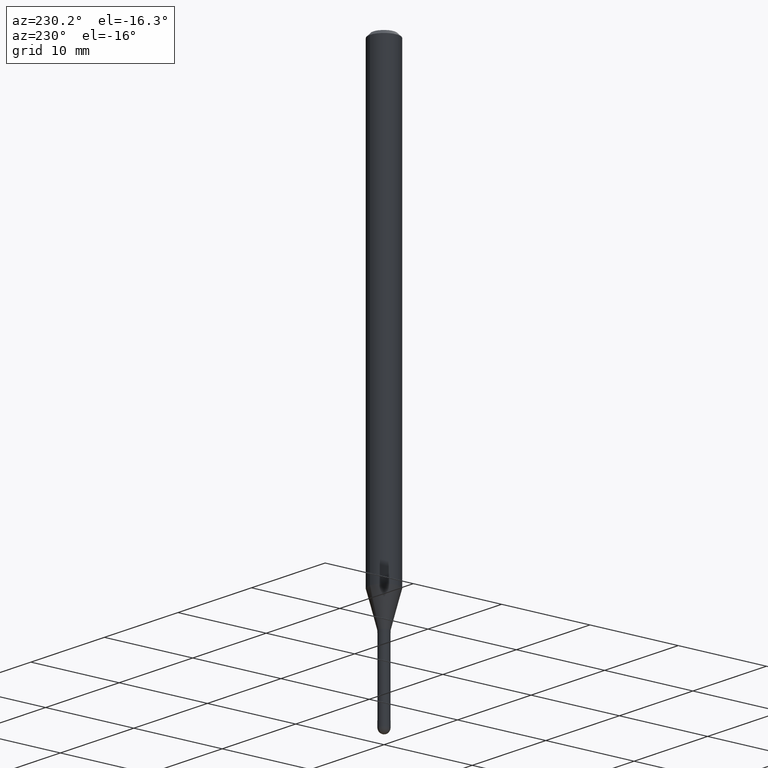
[diagram: clean part render]
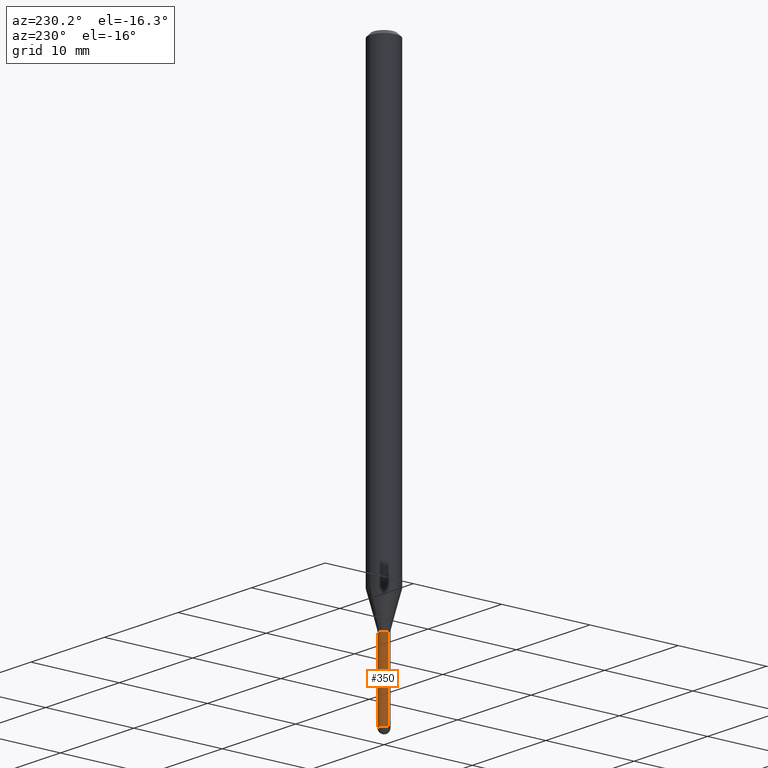
[diagram: same view with one face highlighted and labeled with its STEP entity id]
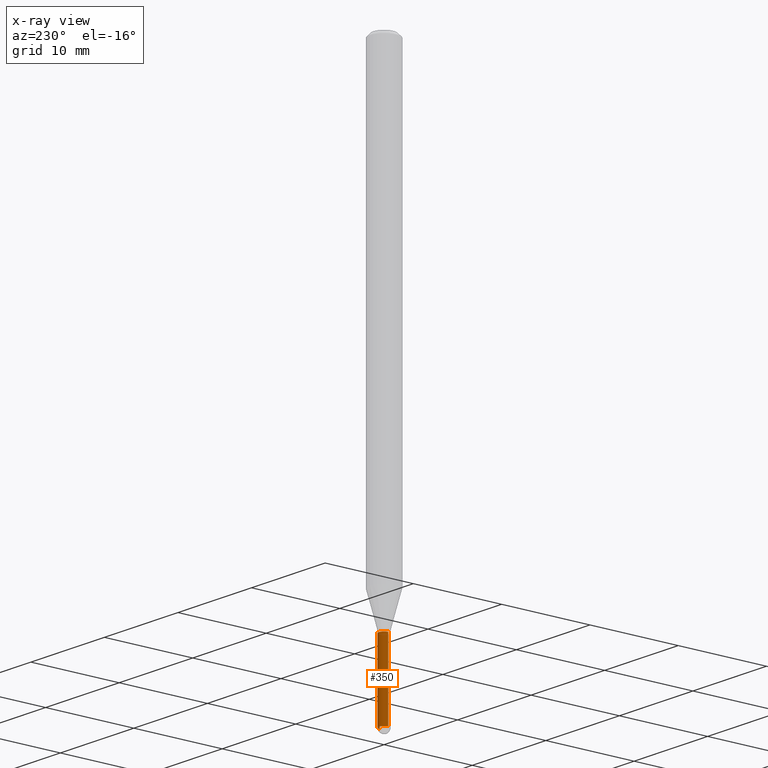
[diagram: x-ray of the same camera — body ghosted, the highlighted face saturated]
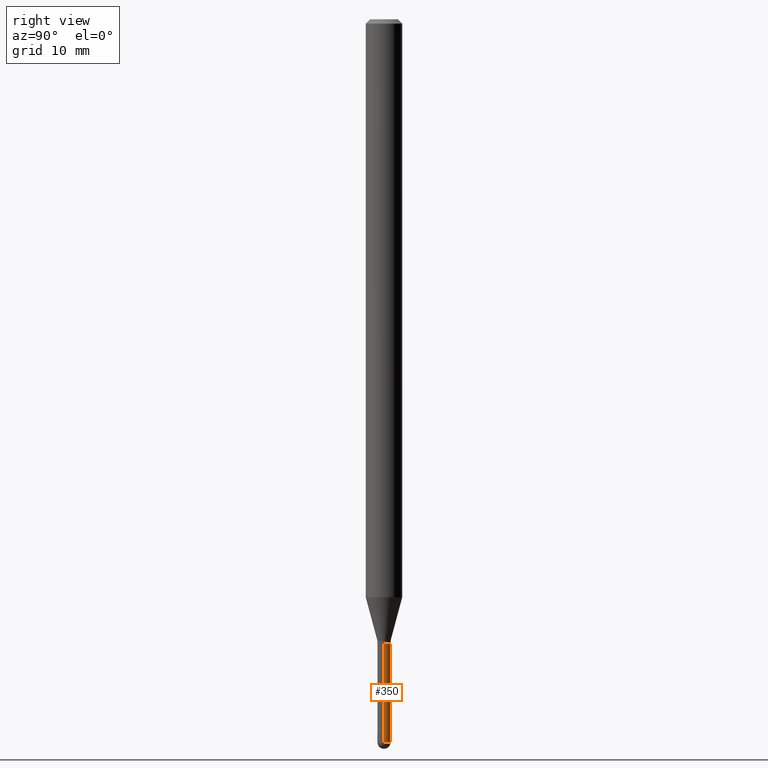
[diagram: same view with one face highlighted and labeled with its STEP entity id]
A machine part, auxiliary view. The second image highlights one B-rep face of the part: STEP entity #350.
The next image is the same camera in x-ray: the body ghosted, the highlighted face saturated — about 0% of this face is hidden behind the body in this view.
A second angle (right view) of the same face is appended — the face is thin or edge-on in the first view.
In plain terms, the highlighted cylindrical surface (edge-blend (fillet) strip) has radius 0.5715 mm, axis along (-0, 0, 1).
Its self-contained STEP definition (entity closure, byte-faithful):
#7 = AXIS2_PLACEMENT_3D ( 'NONE', #12, #18, #60 ) ;
#12 = CARTESIAN_POINT ( 'NONE',  ( 0.000000000000000000, 0.000000000000000000, 0.000000000000000000 ) ) ;
#15 = CIRCLE ( 'NONE', #160, 0.02249999999999999570 ) ;
#18 = DIRECTION ( 'NONE',  ( -2.445468806185136597E-29, 3.491481338843145583E-15, 1.000000000000000000 ) ) ;
#60 = DIRECTION ( 'NONE',  ( 1.000000000000000000, -6.982962677686266711E-15, 4.876176775795935793E-29 ) ) ;
#61 = AXIS2_PLACEMENT_3D ( 'NONE', #276, #77, #165 ) ;
#63 = EDGE_CURVE ( 'NONE', #501, #188, #496, .T. ) ;
#77 = DIRECTION ( 'NONE',  ( -2.445468806185136597E-29, 3.491481338843145583E-15, 1.000000000000000000 ) ) ;
#105 = EDGE_CURVE ( 'NONE', #466, #303, #119, .T. ) ;
#106 = ORIENTED_EDGE ( 'NONE', *, *, #105, .T. ) ;
#113 = LINE ( 'NONE', #399, #429 ) ;
#117 = CARTESIAN_POINT ( 'NONE',  ( 0.02249999999999999917, -7.628886725372273518E-15, -2.140000000000000124 ) ) ;
#119 = CIRCLE ( 'NONE', #510, 0.02249999999999999570 ) ;
#160 = AXIS2_PLACEMENT_3D ( 'NONE', #392, #357, #503 ) ;
#165 = DIRECTION ( 'NONE',  ( 1.000000000000000000, -6.982962677686269077E-15, 0.000000000000000000 ) ) ;
#188 = VERTEX_POINT ( 'NONE', #446 ) ;
#203 = DIRECTION ( 'NONE',  ( -2.445468806185136877E-29, 3.491481338843145188E-15, 1.000000000000000000 ) ) ;
#217 = DIRECTION ( 'NONE',  ( -2.445468806185136877E-29, 3.491481338843145188E-15, 1.000000000000000000 ) ) ;
#223 = EDGE_LOOP ( 'NONE', ( #339, #380, #449, #297, #106 ) ) ;
#226 = VERTEX_POINT ( 'NONE', #312 ) ;
#276 = CARTESIAN_POINT ( 'NONE',  ( 5.233303245236192586E-29, -7.471770065124331886E-15, -2.140000000000000124 ) ) ;
#285 = CARTESIAN_POINT ( 'NONE',  ( 1.571166602480017334E-16, 0.02249999999999136718, -2.477500000000000036 ) ) ;
#297 = ORIENTED_EDGE ( 'NONE', *, *, #417, .F. ) ;
#303 = VERTEX_POINT ( 'NONE', #285 ) ;
#312 = CARTESIAN_POINT ( 'NONE',  ( -0.02249999999999999570, -7.901085425508090322E-15, -2.477500000000000036 ) ) ;
#339 = ORIENTED_EDGE ( 'NONE', *, *, #493, .T. ) ;
#346 = EDGE_CURVE ( 'NONE', #226, #188, #378, .T. ) ;
#350 = ADVANCED_FACE ( 'NONE', ( #375 ), #418, .T. ) ;
#357 = DIRECTION ( 'NONE',  ( -2.445468806185136597E-29, 3.491481338843145583E-15, 1.000000000000000000 ) ) ;
#358 = CARTESIAN_POINT ( 'NONE',  ( 6.058648967323676636E-29, -8.650145016983893338E-15, -2.477500000000000036 ) ) ;
#375 = FACE_OUTER_BOUND ( 'NONE', #223, .T. ) ;
#378 = LINE ( 'NONE', #491, #391 ) ;
#380 = ORIENTED_EDGE ( 'NONE', *, *, #346, .T. ) ;
#391 = VECTOR ( 'NONE', #217, 39.37007874015748143 ) ;
#392 = CARTESIAN_POINT ( 'NONE',  ( 6.058648967323676636E-29, -8.650145016983893338E-15, -2.477500000000000036 ) ) ;
#396 = DIRECTION ( 'NONE',  ( -2.445468806185136597E-29, 3.491481338843145583E-15, 1.000000000000000000 ) ) ;
#399 = CARTESIAN_POINT ( 'NONE',  ( 0.02249999999999999917, -1.571166602479409911E-16, 1.097139774554085483E-30 ) ) ;
#417 = EDGE_CURVE ( 'NONE', #466, #501, #113, .T. ) ;
#418 = CYLINDRICAL_SURFACE ( 'NONE', #7, 0.02249999999999999917 ) ;
#426 = CARTESIAN_POINT ( 'NONE',  ( 0.02249999999999999570, -8.218074201302054244E-15, -2.477500000000000036 ) ) ;
#429 = VECTOR ( 'NONE', #203, 39.37007874015748143 ) ;
#446 = CARTESIAN_POINT ( 'NONE',  ( -0.02249999999999999917, -7.901085425508090322E-15, -2.140000000000000124 ) ) ;
#449 = ORIENTED_EDGE ( 'NONE', *, *, #63, .F. ) ;
#464 = DIRECTION ( 'NONE',  ( 1.000000000000000000, -6.982962677686269866E-15, 0.000000000000000000 ) ) ;
#466 = VERTEX_POINT ( 'NONE', #426 ) ;
#491 = CARTESIAN_POINT ( 'NONE',  ( -0.02249999999999999917, 1.598721155460225359E-16, -1.106760395307353780E-30 ) ) ;
#493 = EDGE_CURVE ( 'NONE', #303, #226, #15, .T. ) ;
#496 = CIRCLE ( 'NONE', #61, 0.02249999999999999917 ) ;
#501 = VERTEX_POINT ( 'NONE', #117 ) ;
#503 = DIRECTION ( 'NONE',  ( 1.000000000000000000, -6.982962677686269866E-15, 0.000000000000000000 ) ) ;
#510 = AXIS2_PLACEMENT_3D ( 'NONE', #358, #396, #464 ) ;